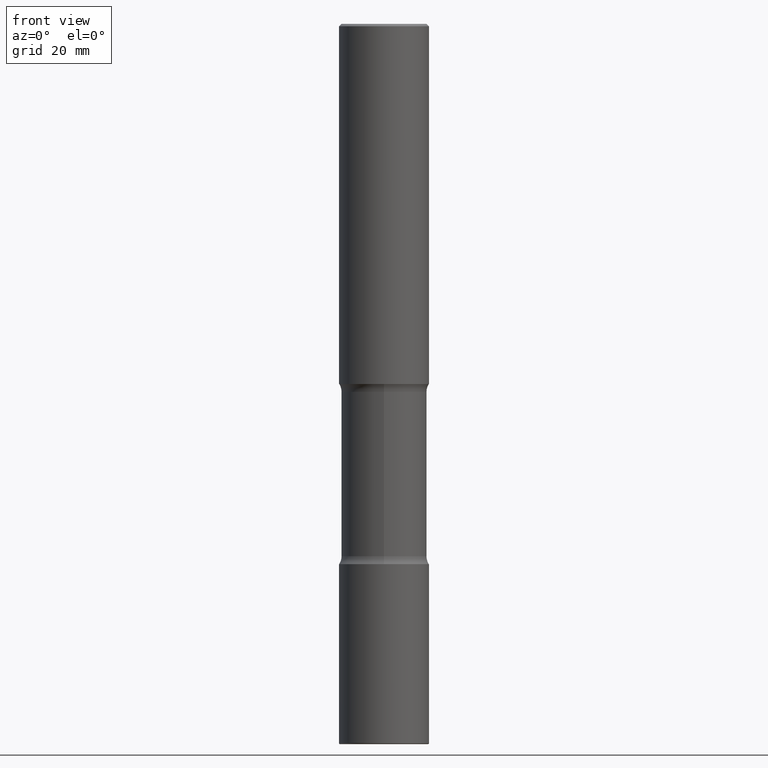
[diagram: clean part render]
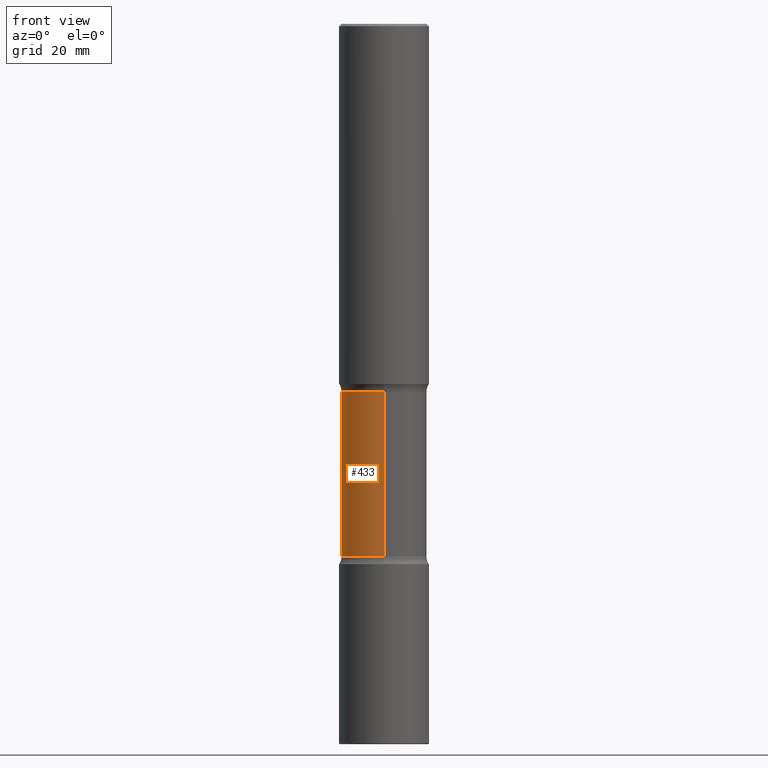
[diagram: same view with one face highlighted and labeled with its STEP entity id]
A machine part, front view. The second image highlights one B-rep face of the part: STEP entity #433.
In plain terms, the highlighted cylindrical surface (partial cylindrical patch) has radius 9.0488 mm, axis along (0, -0, -1).
Its self-contained STEP definition (entity closure, byte-faithful):
#9 = VECTOR ( 'NONE', #209, 39.37007874015748143 ) ;
#25 = CARTESIAN_POINT ( 'NONE',  ( 2.487680453925840195E-15, 0.3562499999999844680, -4.434152164044670386 ) ) ;
#34 = CARTESIAN_POINT ( 'NONE',  ( -2.444052411705960129E-15, -0.3562500000000208278, -5.999999999999998224 ) ) ;
#47 = ORIENTED_EDGE ( 'NONE', *, *, #293, .F. ) ;
#57 = EDGE_CURVE ( 'NONE', #481, #130, #280, .T. ) ;
#65 = CARTESIAN_POINT ( 'NONE',  ( -2.508369580435107128E-15, -0.3562500000000154987, -4.434152164044668609 ) ) ;
#66 = CARTESIAN_POINT ( 'NONE',  ( 2.487680453925806274E-15, 0.3562499999999891309, -3.065847835955330503 ) ) ;
#103 = AXIS2_PLACEMENT_3D ( 'NONE', #392, #532, #323 ) ;
#126 = CARTESIAN_POINT ( 'NONE',  ( -2.508369580435144205E-15, -0.3562500000000108358, -3.065847835955328282 ) ) ;
#130 = VERTEX_POINT ( 'NONE', #66 ) ;
#138 = CYLINDRICAL_SURFACE ( 'NONE', #300, 0.3562500000000000111 ) ;
#151 = VERTEX_POINT ( 'NONE', #25 ) ;
#178 = CIRCLE ( 'NONE', #444, 0.3562500000000000111 ) ;
#209 = DIRECTION ( 'NONE',  ( 2.508247471065963170E-29, -3.401578717594097873E-15, -1.000000000000000000 ) ) ;
#229 = ORIENTED_EDGE ( 'NONE', *, *, #57, .T. ) ;
#234 = ORIENTED_EDGE ( 'NONE', *, *, #518, .F. ) ;
#237 = VERTEX_POINT ( 'NONE', #65 ) ;
#246 = DIRECTION ( 'NONE',  ( 2.508247471065963170E-29, -3.401578717594097873E-15, -1.000000000000000000 ) ) ;
#252 = DIRECTION ( 'NONE',  ( 2.508247471065963170E-29, -3.401578717594097873E-15, -1.000000000000000000 ) ) ;
#257 = CARTESIAN_POINT ( 'NONE',  ( 2.487680453925879638E-15, 0.3562499999999791389, -6.000000000000000888 ) ) ;
#280 = CIRCLE ( 'NONE', #103, 0.3562500000000000111 ) ;
#293 = EDGE_CURVE ( 'NONE', #481, #237, #327, .T. ) ;
#300 = AXIS2_PLACEMENT_3D ( 'NONE', #310, #252, #463 ) ;
#310 = CARTESIAN_POINT ( 'NONE',  ( 1.476698083443205790E-28, -2.081403410118529621E-14, -5.999999999999999112 ) ) ;
#323 = DIRECTION ( 'NONE',  ( 6.982962677686265133E-15, 1.000000000000000000, -3.067338098149347905E-15 ) ) ;
#327 = LINE ( 'NONE', #34, #9 ) ;
#345 = LINE ( 'NONE', #257, #360 ) ;
#360 = VECTOR ( 'NONE', #246, 39.37007874015748143 ) ;
#392 = CARTESIAN_POINT ( 'NONE',  ( 7.407401089244291879E-29, -1.083328454578828421E-14, -3.065847835955329614 ) ) ;
#408 = EDGE_LOOP ( 'NONE', ( #47, #229, #495, #234 ) ) ;
#426 = EDGE_CURVE ( 'NONE', #130, #151, #345, .T. ) ;
#430 = FACE_OUTER_BOUND ( 'NONE', #408, .T. ) ;
#433 = ADVANCED_FACE ( 'NONE', ( #430 ), #138, .T. ) ;
#444 = AXIS2_PLACEMENT_3D ( 'NONE', #447, #535, #545 ) ;
#447 = CARTESIAN_POINT ( 'NONE',  ( 1.083944695982298980E-28, -1.548767942740887449E-14, -4.434152164044669497 ) ) ;
#463 = DIRECTION ( 'NONE',  ( 6.982962677686265133E-15, 1.000000000000000000, -3.067338098149347905E-15 ) ) ;
#481 = VERTEX_POINT ( 'NONE', #126 ) ;
#495 = ORIENTED_EDGE ( 'NONE', *, *, #426, .T. ) ;
#518 = EDGE_CURVE ( 'NONE', #237, #151, #178, .T. ) ;
#532 = DIRECTION ( 'NONE',  ( 2.508247471065963170E-29, -3.401578717594097873E-15, -1.000000000000000000 ) ) ;
#535 = DIRECTION ( 'NONE',  ( 2.508247471065963170E-29, -3.401578717594097873E-15, -1.000000000000000000 ) ) ;
#545 = DIRECTION ( 'NONE',  ( 6.982962677686265133E-15, 1.000000000000000000, -3.067338098149347905E-15 ) ) ;